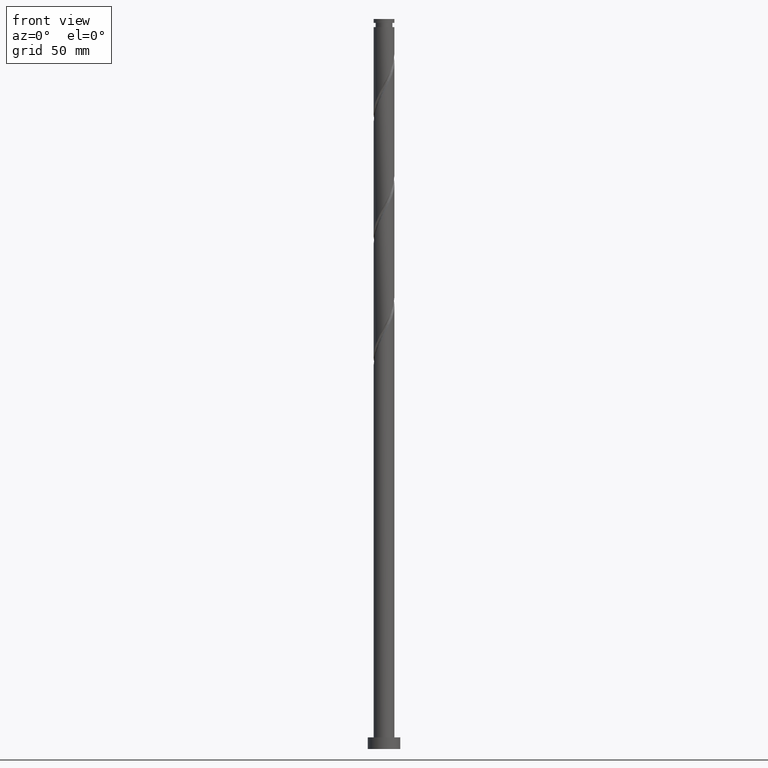
[diagram: clean part render]
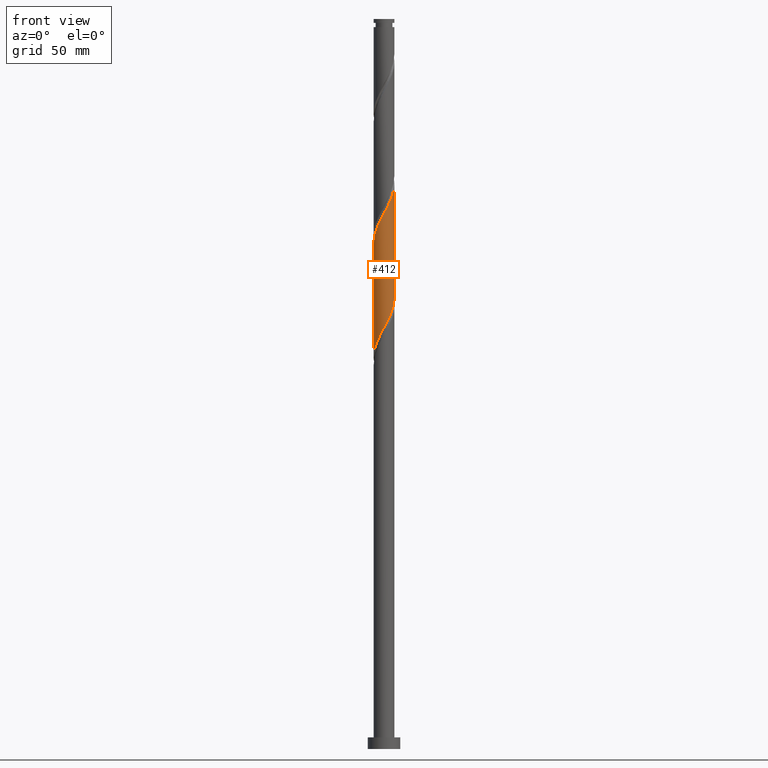
[diagram: same view with one face highlighted and labeled with its STEP entity id]
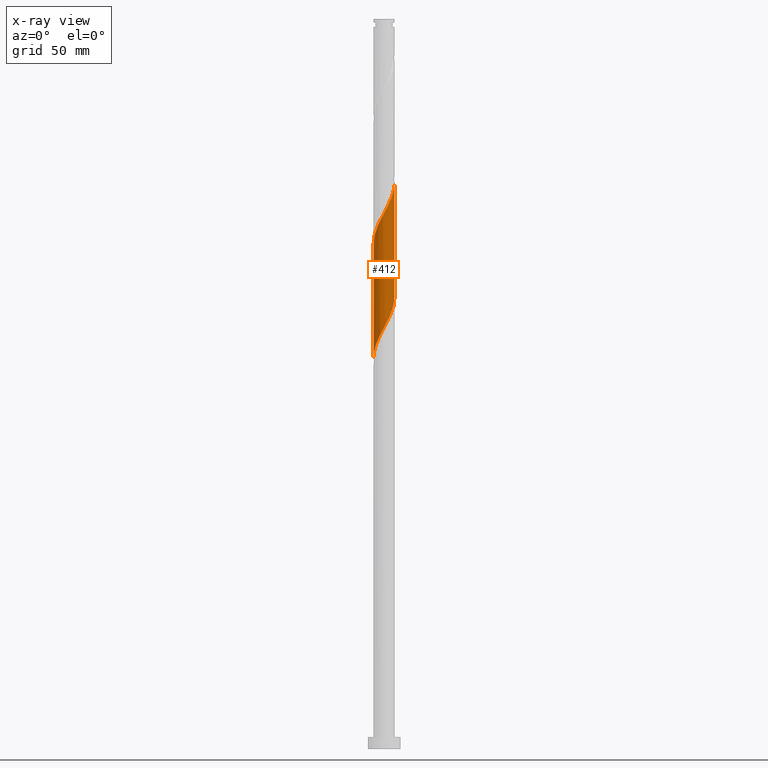
[diagram: x-ray of the same camera — body ghosted, the highlighted face saturated]
A machine part, front view. The second image highlights one B-rep face of the part: STEP entity #412.
The next image is the same camera in x-ray: the body ghosted, the highlighted face saturated — about 0% of this face is hidden behind the body in this view.
In plain terms, the highlighted cylindrical surface (edge-blend (fillet) strip) has radius 4.5 mm, axis along (-0, -0, -1).
Its self-contained STEP definition (entity closure, byte-faithful):
#1 = CARTESIAN_POINT ( 'NONE',  ( -3.278237881270730458, -3.124137324024466089, 224.3196435053399682 ) ) ;
#30 = CYLINDRICAL_SURFACE ( 'NONE', #1000, 4.500000000000000000 ) ;
#39 = CARTESIAN_POINT ( 'NONE',  ( 4.100167112320052709, -1.854354240982299507, 191.5071435053400251 ) ) ;
#51 = CARTESIAN_POINT ( 'NONE',  ( -1.854354240982299062, -4.100167112320052709, 178.3821435053400535 ) ) ;
#59 = CARTESIAN_POINT ( 'NONE',  ( 2.889548769671827166, -3.449711278888136778, 187.7571435053399966 ) ) ;
#118 = CARTESIAN_POINT ( 'NONE',  ( 4.500000000000000000, 5.510910596163088569E-16, 315.0000000000000000 ) ) ;
#123 = CARTESIAN_POINT ( 'NONE',  ( -4.499999999999999112, 1.761241275540091219E-15, 168.8066605832460709 ) ) ;
#140 = CARTESIAN_POINT ( 'NONE',  ( 1.392376358355450039, -4.309102656267771891, 233.6946435053400535 ) ) ;
#201 = CARTESIAN_POINT ( 'NONE',  ( -4.500000000000000000, -0.05414803724874904522, 168.9070232714711608 ) ) ;
#206 = EDGE_LOOP ( 'NONE', ( #458, #1259, #549, #803 ) ) ;
#221 = CARTESIAN_POINT ( 'NONE',  ( 0.000000000000000000, 0.000000000000000000, 315.0000000000000000 ) ) ;
#257 = VECTOR ( 'NONE', #1606, 1000.000000000000000 ) ;
#264 = CARTESIAN_POINT ( 'NONE',  ( -2.500859658072933200, -3.775285233751815461, 226.1946435053400251 ) ) ;
#294 = CARTESIAN_POINT ( 'NONE',  ( 4.498697073123638646, -0.1082803965123958490, 244.0071435053399966 ) ) ;
#329 = CARTESIAN_POINT ( 'NONE',  ( -0.8954886933959602668, -4.410000000000000142, 180.2571435053400251 ) ) ;
#339 = CARTESIAN_POINT ( 'NONE',  ( -0.3986010284364707168, -4.510897343732231946, 181.1946435053400819 ) ) ;
#348 = CARTESIAN_POINT ( 'NONE',  ( 4.309102656267766562, -1.392376358355450261, 192.4446435053400535 ) ) ;
#392 = CARTESIAN_POINT ( 'NONE',  ( -4.500000000000005329, -4.328474321242565693E-16, 217.9576264274339508 ) ) ;
#412 = ADVANCED_FACE ( 'NONE', ( #1680 ), #30, .T. ) ;
#423 = CARTESIAN_POINT ( 'NONE',  ( 4.486496802515032911, -0.6151618214612607494, 243.0696435053400251 ) ) ;
#441 = EDGE_CURVE ( 'NONE', #930, #1203, #1089, .T. ) ;
#444 = CARTESIAN_POINT ( 'NONE',  ( -0.6151618214612604163, -4.486496802515032911, 229.9446435053400251 ) ) ;
#458 = ORIENTED_EDGE ( 'NONE', *, *, #1796, .F. ) ;
#474 = CARTESIAN_POINT ( 'NONE',  ( 0.6151618214612575297, -4.486496802515027582, 183.0696435053400251 ) ) ;
#485 = CARTESIAN_POINT ( 'NONE',  ( 4.410000000000000142, -0.8954886933959605999, 193.3821435053400535 ) ) ;
#495 = CARTESIAN_POINT ( 'NONE',  ( -4.006204905696194807, -2.049468773505891406, 172.7571435053400535 ) ) ;
#540 = VECTOR ( 'NONE', #710, 1000.000000000000000 ) ;
#549 = ORIENTED_EDGE ( 'NONE', *, *, #554, .T. ) ;
#554 = EDGE_CURVE ( 'NONE', #1923, #1203, #586, .T. ) ;
#556 = CARTESIAN_POINT ( 'NONE',  ( 3.449711278888141219, -2.889548769671832940, 238.3821435053400251 ) ) ;
#566 = CARTESIAN_POINT ( 'NONE',  ( -1.106619855200059233, -4.361810690077811081, 229.0071435053400535 ) ) ;
#577 = CARTESIAN_POINT ( 'NONE',  ( -2.049468773505896735, -4.006204905696198360, 227.1321435053401103 ) ) ;
#586 = LINE ( 'NONE', #737, #257 ) ;
#596 = CARTESIAN_POINT ( 'NONE',  ( 0.8954886933959598228, -4.410000000000006359, 232.7571435053400535 ) ) ;
#606 = CARTESIAN_POINT ( 'NONE',  ( -4.500000000000005329, -4.328474321242565693E-16, 217.9576264274339508 ) ) ;
#629 = DIRECTION ( 'NONE',  ( -0.000000000000000000, -0.000000000000000000, -1.000000000000000000 ) ) ;
#641 = CARTESIAN_POINT ( 'NONE',  ( -2.316332123609147864, -3.891231568372337968, 177.4446435053400251 ) ) ;
#651 = CARTESIAN_POINT ( 'NONE',  ( -4.361810690077804864, -1.106619855200055902, 170.8821435053400535 ) ) ;
#658 = CARTESIAN_POINT ( 'NONE',  ( -4.237124577640576817, -1.598077888938854496, 171.8196435053400819 ) ) ;
#710 = DIRECTION ( 'NONE',  ( -0.000000000000000000, -0.000000000000000000, -1.000000000000000000 ) ) ;
#719 = CARTESIAN_POINT ( 'NONE',  ( 3.775285233751815461, -2.500859658072934089, 239.3196435053399682 ) ) ;
#728 = CARTESIAN_POINT ( 'NONE',  ( -2.889548769671832940, -3.449711278888141663, 225.2571435053400819 ) ) ;
#737 = CARTESIAN_POINT ( 'NONE',  ( -4.500000000000000000, 0.000000000000000000, 315.0000000000000000 ) ) ;
#801 = CARTESIAN_POINT ( 'NONE',  ( 4.499999999999998224, -0.4522670168666539925, 194.2183895042824986 ) ) ;
#803 = ORIENTED_EDGE ( 'NONE', *, *, #441, .F. ) ;
#853 = CARTESIAN_POINT ( 'NONE',  ( 4.006204905696198360, -2.049468773505896735, 240.2571435053400251 ) ) ;
#863 = CARTESIAN_POINT ( 'NONE',  ( -0.1082803965123954049, -4.498697073123638646, 230.8821435053400535 ) ) ;
#885 = CARTESIAN_POINT ( 'NONE',  ( 4.237124577640583034, -1.598077888938858049, 241.1946435053400251 ) ) ;
#918 = CARTESIAN_POINT ( 'NONE',  ( -3.124137324024463425, -3.278237881270725573, 175.5696435053401103 ) ) ;
#928 = CARTESIAN_POINT ( 'NONE',  ( -3.449711278888136334, -2.889548769671827166, 174.6321435053400535 ) ) ;
#930 = VERTEX_POINT ( 'NONE', #1374 ) ;
#937 = CARTESIAN_POINT ( 'NONE',  ( -4.486496802515027582, -0.6151618214612578628, 169.9446435053400251 ) ) ;
#947 = CARTESIAN_POINT ( 'NONE',  ( -4.499999999999998224, 1.761241275540091219E-15, 168.8066605832460709 ) ) ;
#973 = CARTESIAN_POINT ( 'NONE',  ( -4.410000000000006359, -0.8954886933959601558, 219.6321435053400819 ) ) ;
#999 = CARTESIAN_POINT ( 'NONE',  ( 0.3986010284364694400, -4.510897343732239051, 231.8196435053399966 ) ) ;
#1000 = AXIS2_PLACEMENT_3D ( 'NONE', #221, #629, #1826 ) ;
#1029 = CARTESIAN_POINT ( 'NONE',  ( 1.854354240982299729, -4.100167112320058926, 234.6321435053399966 ) ) ;
#1062 = CARTESIAN_POINT ( 'NONE',  ( 2.049468773505890962, -4.006204905696194807, 185.8821435053400535 ) ) ;
#1073 = CARTESIAN_POINT ( 'NONE',  ( 3.584734724821531326, -2.720234723816805644, 189.6321435053400251 ) ) ;
#1084 = CARTESIAN_POINT ( 'NONE',  ( 3.278237881270725573, -3.124137324024463425, 188.6946435053400819 ) ) ;
#1089 =( BOUNDED_CURVE ( )  B_SPLINE_CURVE ( 2, ( #1816, #801, #485, #348, #39, #1690, #1073, #1084, #59, #1531, #1062, #1210, #1806, #474, #1670, #339, #329, #1658, #51, #641, #1542, #918, #928, #1522, #495, #658, #651, #937, #1843, #201, #947 ),
 .UNSPECIFIED., .F., .T. ) 
 B_SPLINE_CURVE_WITH_KNOTS ( ( 3, 2, 2, 2, 2, 2, 2, 2, 2, 2, 2, 2, 2, 2, 2, 3 ),
 ( 0.8045303401299221946, 0.8125000000000000000, 0.8214285714285713969, 0.8303571428571429047, 0.8392857142857143016, 0.8482142857142856984, 0.8571428571428570953, 0.8660714285714286031, 0.8750000000000000000, 0.8839285714285713969, 0.8928571428571429047, 0.9017857142857143016, 0.9107142857142856984, 0.9196428571428570953, 0.9285714285714286031, 0.9295303401299221946 ),
 .UNSPECIFIED. ) 
 CURVE ( )  GEOMETRIC_REPRESENTATION_ITEM ( )  RATIONAL_B_SPLINE_CURVE ( ( 0.9079949616362010811, 0.9039886423360644629, 0.9090909090909310430, 0.9033747362666060265, 0.9090909090909310430, 0.9033747362666060265, 0.9090909090909310430, 0.9033747362666060265, 0.9090909090909310430, 0.9033747362666060265, 0.9090909090909310430, 0.9033747362666060265, 0.9090909090909310430, 0.9033747362666060265, 0.9090909090909310430, 0.9033747362666060265, 0.9090909090909310430, 0.9033747362666060265, 0.9090909090909310430, 0.9033747362666060265, 0.9090909090909310430, 0.9033747362666060265, 0.9090909090909310430, 0.9033747362666060265, 0.9090909090909310430, 0.9033747362666060265, 0.9090909090909310430, 0.9033747362666060265, 0.9090909090909310430, 0.9084770030214727177, 0.9079949616362010811 ) ) 
 REPRESENTATION_ITEM ( '' )  );
#1154 = CARTESIAN_POINT ( 'NONE',  ( -1.598077888938858049, -4.237124577640583034, 228.0696435053399966 ) ) ;
#1177 = CARTESIAN_POINT ( 'NONE',  ( 2.720234723816808753, -3.584734724821537544, 236.5071435053400251 ) ) ;
#1203 = VERTEX_POINT ( 'NONE', #123 ) ;
#1210 = CARTESIAN_POINT ( 'NONE',  ( 1.598077888938854496, -4.237124577640576817, 184.9446435053400819 ) ) ;
#1212 = CARTESIAN_POINT ( 'NONE',  ( 4.500000000000005329, -1.865721690190761372E-16, 244.2076264274339223 ) ) ;
#1259 = ORIENTED_EDGE ( 'NONE', *, *, #1771, .F. ) ;
#1303 = CARTESIAN_POINT ( 'NONE',  ( -4.100167112320058926, -1.854354240982300173, 221.5071435053400251 ) ) ;
#1333 = CARTESIAN_POINT ( 'NONE',  ( 2.316332123609148752, -3.891231568372342853, 235.5696435053399966 ) ) ;
#1374 = CARTESIAN_POINT ( 'NONE',  ( 4.499999999999999112, -2.209014481185876808E-15, 195.0566605832460709 ) ) ;
#1449 = CARTESIAN_POINT ( 'NONE',  ( -3.584734724821537544, -2.720234723816808753, 223.3821435053400251 ) ) ;
#1463 = VERTEX_POINT ( 'NONE', #1212 ) ;
#1522 = CARTESIAN_POINT ( 'NONE',  ( -3.775285233751811020, -2.500859658072928315, 173.6946435053400251 ) ) ;
#1531 = CARTESIAN_POINT ( 'NONE',  ( 2.500859658072928315, -3.775285233751811464, 186.8196435053399966 ) ) ;
#1542 = CARTESIAN_POINT ( 'NONE',  ( -2.720234723816805200, -3.584734724821531326, 176.5071435053400535 ) ) ;
#1570 = CARTESIAN_POINT ( 'NONE',  ( -4.309102656267771891, -1.392376358355450483, 220.5696435053399966 ) ) ;
#1585 = CARTESIAN_POINT ( 'NONE',  ( 4.361810690077811081, -1.106619855200059233, 242.1321435053400251 ) ) ;
#1596 = CARTESIAN_POINT ( 'NONE',  ( 3.124137324024466089, -3.278237881270730458, 237.4446435053400535 ) ) ;
#1606 = DIRECTION ( 'NONE',  ( -0.000000000000000000, -0.000000000000000000, -1.000000000000000000 ) ) ;
#1626 = CARTESIAN_POINT ( 'NONE',  ( 4.500000000000005329, -1.865721690190761372E-16, 244.2076264274339223 ) ) ;
#1658 = CARTESIAN_POINT ( 'NONE',  ( -1.392376358355450039, -4.309102656267766562, 179.3196435053401103 ) ) ;
#1670 = CARTESIAN_POINT ( 'NONE',  ( 0.1082803965123934897, -4.498697073123629764, 182.1321435053400535 ) ) ;
#1680 = FACE_OUTER_BOUND ( 'NONE', #206, .T. ) ;
#1690 = CARTESIAN_POINT ( 'NONE',  ( 3.891231568372337968, -2.316332123609147864, 190.5696435053401103 ) ) ;
#1715 = CARTESIAN_POINT ( 'NONE',  ( -4.500000000000011546, -0.4522670168666219626, 218.7958975063975515 ) ) ;
#1754 = LINE ( 'NONE', #118, #540 ) ;
#1771 = EDGE_CURVE ( 'NONE', #1923, #1463, #1897, .T. ) ;
#1774 = CARTESIAN_POINT ( 'NONE',  ( -3.891231568372342853, -2.316332123609149196, 222.4446435053400535 ) ) ;
#1796 = EDGE_CURVE ( 'NONE', #1463, #930, #1754, .T. ) ;
#1806 = CARTESIAN_POINT ( 'NONE',  ( 1.106619855200055902, -4.361810690077804864, 184.0071435053400535 ) ) ;
#1816 = CARTESIAN_POINT ( 'NONE',  ( 4.499999999999998224, -2.209014481185876808E-15, 195.0566605832460709 ) ) ;
#1826 = DIRECTION ( 'NONE',  ( -1.000000000000000000, 0.000000000000000000, 0.000000000000000000 ) ) ;
#1843 = CARTESIAN_POINT ( 'NONE',  ( -4.498697073123629764, -0.1082803965123936979, 169.0071435053400535 ) ) ;
#1887 = CARTESIAN_POINT ( 'NONE',  ( 4.500000000000006217, -0.05414803724876361690, 244.1072637392088041 ) ) ;
#1897 =( BOUNDED_CURVE ( )  B_SPLINE_CURVE ( 2, ( #392, #1715, #973, #1570, #1303, #1774, #1449, #1, #728, #264, #577, #1154, #566, #444, #863, #999, #596, #140, #1029, #1333, #1177, #1596, #556, #719, #853, #885, #1585, #423, #294, #1887, #1626 ),
 .UNSPECIFIED., .F., .T. ) 
 B_SPLINE_CURVE_WITH_KNOTS ( ( 3, 2, 2, 2, 2, 2, 2, 2, 2, 2, 2, 2, 2, 2, 2, 3 ),
 ( 0.3045303401299216395, 0.3125000000000000000, 0.3214285714285713969, 0.3303571428571429047, 0.3392857142857143016, 0.3482142857142856984, 0.3571428571428570953, 0.3660714285714286031, 0.3750000000000000000, 0.3839285714285713969, 0.3928571428571429047, 0.4017857142857143016, 0.4107142857142856984, 0.4196428571428570953, 0.4285714285714286031, 0.4295303401299219725 ),
 .UNSPECIFIED. ) 
 CURVE ( )  GEOMETRIC_REPRESENTATION_ITEM ( )  RATIONAL_B_SPLINE_CURVE ( ( 0.9079949616362079645, 0.9039886423360704581, 0.9090909090909374823, 0.9033747362666124658, 0.9090909090909374823, 0.9033747362666124658, 0.9090909090909374823, 0.9033747362666124658, 0.9090909090909374823, 0.9033747362666124658, 0.9090909090909374823, 0.9033747362666124658, 0.9090909090909374823, 0.9033747362666124658, 0.9090909090909374823, 0.9033747362666124658, 0.9090909090909374823, 0.9033747362666124658, 0.9090909090909374823, 0.9033747362666124658, 0.9090909090909374823, 0.9033747362666124658, 0.9090909090909374823, 0.9033747362666124658, 0.9090909090909374823, 0.9033747362666124658, 0.9090909090909374823, 0.9033747362666124658, 0.9090909090909374823, 0.9084770030214793790, 0.9079949616362078535 ) ) 
 REPRESENTATION_ITEM ( '' )  );
#1923 = VERTEX_POINT ( 'NONE', #606 ) ;